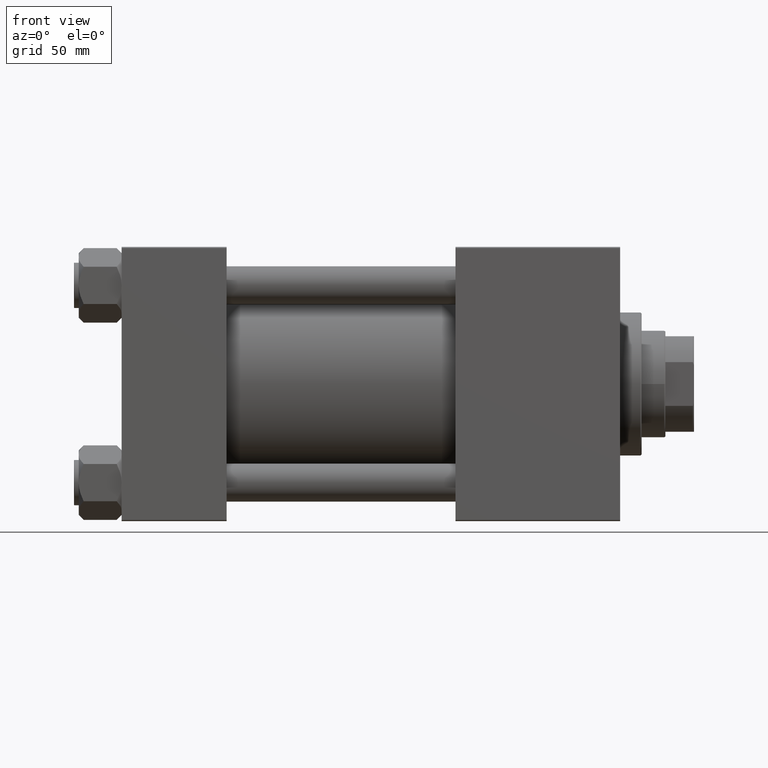
[diagram: clean part render]
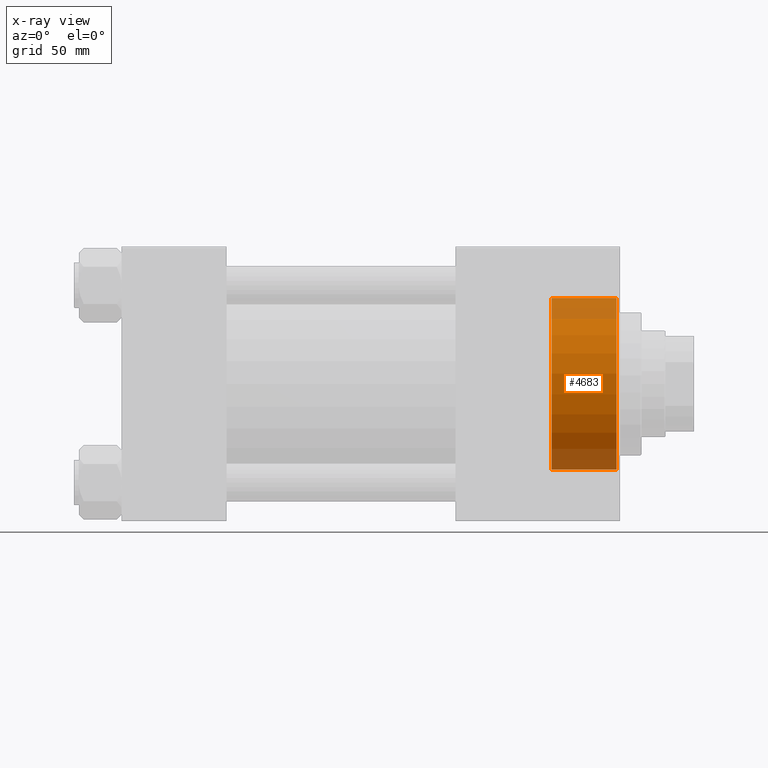
[diagram: x-ray — body ghosted, one internal face saturated and labeled with its STEP entity id]
A machine part, front view, then the same camera in x-ray: the body is ghosted and one INTERNAL B-rep face — a face not visible from any outside direction — is saturated and labeled: STEP entity #4683.
In plain terms, the highlighted cylindrical surface (partial cylindrical patch) has radius 36 mm, axis along (1, 0, 0).
Its self-contained STEP definition (entity closure, byte-faithful):
#768 = CARTESIAN_POINT ( 'NONE',  ( 180.3000000000000114, 0.000000000000000000, -36.00000000000000000 ) ) ;
#2174 = VERTEX_POINT ( 'NONE', #48141 ) ;
#4470 = DIRECTION ( 'NONE',  ( 1.000000000000000000, -0.000000000000000000, -0.000000000000000000 ) ) ;
#4683 = ADVANCED_FACE ( 'NONE', ( #20975 ), #17122, .F. ) ;
#5819 = DIRECTION ( 'NONE',  ( 0.000000000000000000, 0.000000000000000000, -1.000000000000000000 ) ) ;
#7195 = EDGE_CURVE ( 'NONE', #42277, #13236, #19487, .T. ) ;
#8327 = LINE ( 'NONE', #23992, #48990 ) ;
#9421 = DIRECTION ( 'NONE',  ( 1.000000000000000000, -0.000000000000000000, -0.000000000000000000 ) ) ;
#12640 = CARTESIAN_POINT ( 'NONE',  ( 180.3000000000000114, 0.000000000000000000, 0.000000000000000000 ) ) ;
#13236 = VERTEX_POINT ( 'NONE', #22364 ) ;
#14468 = AXIS2_PLACEMENT_3D ( 'NONE', #18115, #26836, #38408 ) ;
#16563 = EDGE_LOOP ( 'NONE', ( #25070, #48709, #26419, #25051 ) ) ;
#16750 = DIRECTION ( 'NONE',  ( 1.000000000000000000, 0.000000000000000000, 0.000000000000000000 ) ) ;
#17122 = CYLINDRICAL_SURFACE ( 'NONE', #24324, 36.00000000000000000 ) ;
#18115 = CARTESIAN_POINT ( 'NONE',  ( 207.5000000000000000, 0.000000000000000000, 0.000000000000000000 ) ) ;
#19313 = VERTEX_POINT ( 'NONE', #47927 ) ;
#19487 = CIRCLE ( 'NONE', #14468, 36.00000000000000000 ) ;
#20975 = FACE_OUTER_BOUND ( 'NONE', #16563, .T. ) ;
#22364 = CARTESIAN_POINT ( 'NONE',  ( 207.5000000000000000, 0.000000000000000000, -36.00000000000000000 ) ) ;
#22825 = CARTESIAN_POINT ( 'NONE',  ( 207.5000000000000000, 4.408728476930470856E-15, 36.00000000000000000 ) ) ;
#23992 = CARTESIAN_POINT ( 'NONE',  ( 180.3000000000000114, 4.408728476930470856E-15, 36.00000000000000000 ) ) ;
#24324 = AXIS2_PLACEMENT_3D ( 'NONE', #32792, #9421, #5819 ) ;
#25051 = ORIENTED_EDGE ( 'NONE', *, *, #30166, .F. ) ;
#25070 = ORIENTED_EDGE ( 'NONE', *, *, #45898, .F. ) ;
#26419 = ORIENTED_EDGE ( 'NONE', *, *, #7195, .T. ) ;
#26836 = DIRECTION ( 'NONE',  ( 1.000000000000000000, 0.000000000000000000, 0.000000000000000000 ) ) ;
#30166 = EDGE_CURVE ( 'NONE', #2174, #13236, #40310, .T. ) ;
#30793 = VECTOR ( 'NONE', #47262, 1000.000000000000000 ) ;
#31174 = AXIS2_PLACEMENT_3D ( 'NONE', #12640, #16750, #32162 ) ;
#32162 = DIRECTION ( 'NONE',  ( 0.000000000000000000, 0.000000000000000000, -1.000000000000000000 ) ) ;
#32792 = CARTESIAN_POINT ( 'NONE',  ( 180.3000000000000114, 0.000000000000000000, 0.000000000000000000 ) ) ;
#35274 = CIRCLE ( 'NONE', #31174, 36.00000000000000000 ) ;
#38063 = EDGE_CURVE ( 'NONE', #19313, #42277, #8327, .T. ) ;
#38408 = DIRECTION ( 'NONE',  ( 0.000000000000000000, 0.000000000000000000, 1.000000000000000000 ) ) ;
#40310 = LINE ( 'NONE', #768, #30793 ) ;
#42277 = VERTEX_POINT ( 'NONE', #22825 ) ;
#45898 = EDGE_CURVE ( 'NONE', #19313, #2174, #35274, .T. ) ;
#47262 = DIRECTION ( 'NONE',  ( 1.000000000000000000, -0.000000000000000000, -0.000000000000000000 ) ) ;
#47927 = CARTESIAN_POINT ( 'NONE',  ( 180.3000000000000114, 4.408728476930470856E-15, 36.00000000000000000 ) ) ;
#48141 = CARTESIAN_POINT ( 'NONE',  ( 180.3000000000000114, 0.000000000000000000, -36.00000000000000000 ) ) ;
#48709 = ORIENTED_EDGE ( 'NONE', *, *, #38063, .T. ) ;
#48990 = VECTOR ( 'NONE', #4470, 1000.000000000000000 ) ;